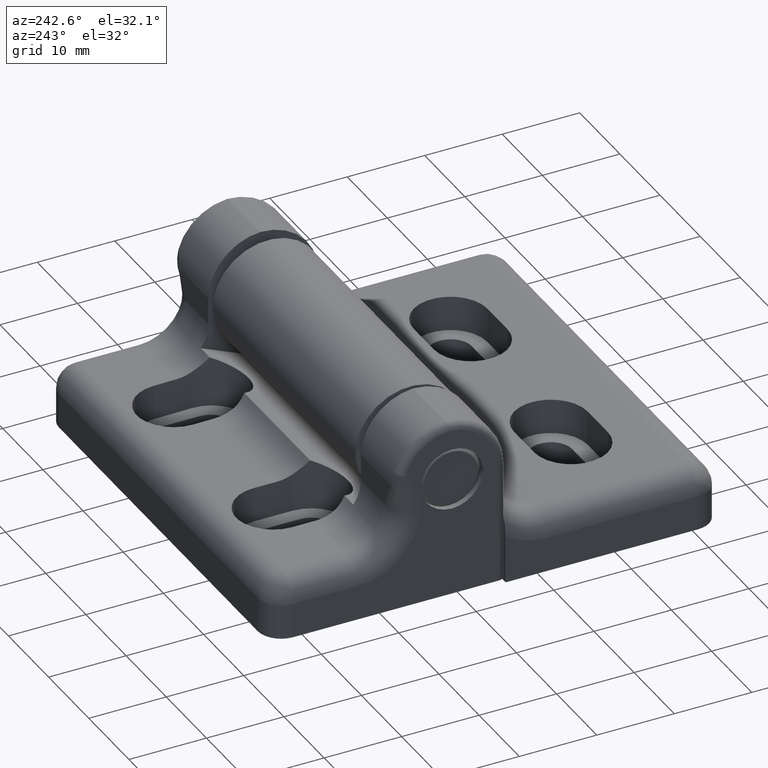
[diagram: clean part render]
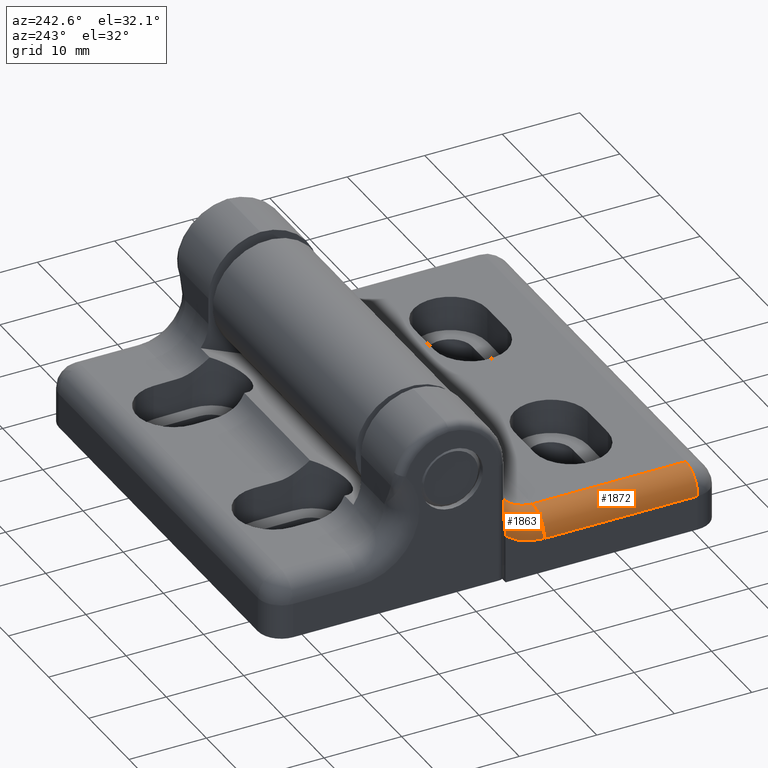
[diagram: same view with one multi-face feature highlighted, each face labeled with its STEP entity id]
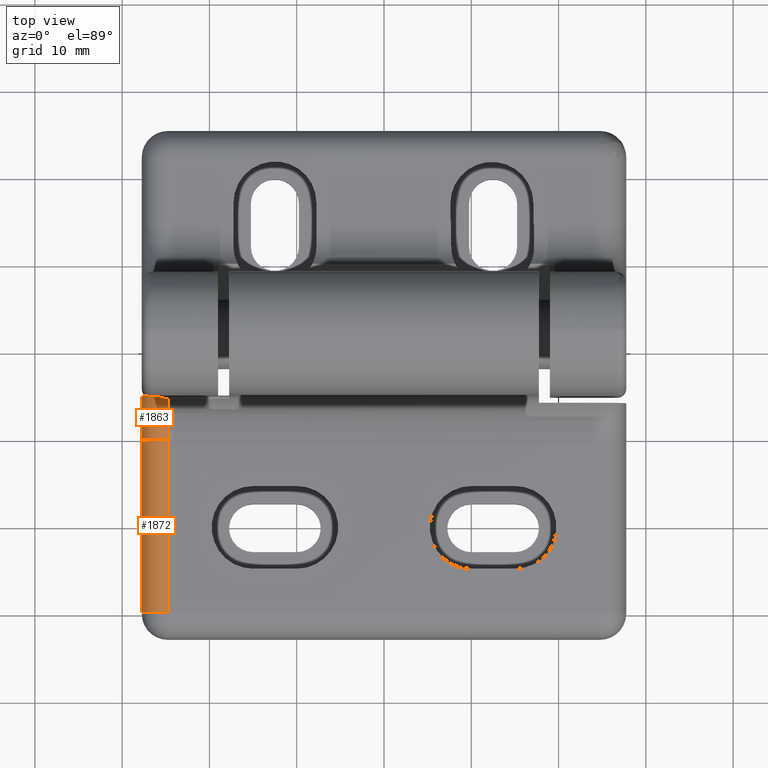
[diagram: same view with one multi-face feature highlighted, each face labeled with its STEP entity id]
A machine part, auxiliary view. The highlighted faces form ONE feature: a constant-radius fillet chain: 2 tangent blend faces with common blend radius 3 mm. The faces share edges in the B-rep.
A second angle (top view) of the same feature is appended — it is thin or edge-on in the first view.
Their STEP definitions:
[1] entity #1863 (Torus):
#43=TOROIDAL_SURFACE('',#2060,8.,3.);
#106=B_SPLINE_CURVE_WITH_KNOTS('',3,(#3235,#3236,#3237,#3238,#3239,#3240,
#3241,#3242),.UNSPECIFIED.,.F.,.F.,(4,2,2,4),(-0.664984729140869,-0.537973450419082,
-0.410962171697295,-0.23245759743016),.UNSPECIFIED.);
#108=B_SPLINE_CURVE_WITH_KNOTS('',3,(#3287,#3288,#3289,#3290,#3291,#3292,
#3293,#3294,#3295,#3296,#3297,#3298,#3299,#3300),.UNSPECIFIED.,.F.,.F.,
(4,2,2,2,2,2,4),(-0.000789974018252352,0.,0.10135919707466,0.153204696670885,
0.187321816884398,0.208404518133837,0.220310494605014),.UNSPECIFIED.);
#214=FACE_OUTER_BOUND('',#334,.T.);
#334=EDGE_LOOP('',(#1603,#1604,#1605,#1606,#1607));
#729=CIRCLE('',#2039,5.);
#740=CIRCLE('',#2061,8.);
#741=CIRCLE('',#2062,3.);
#888=VERTEX_POINT('',#3223);
#889=VERTEX_POINT('',#3225);
#892=VERTEX_POINT('',#3233);
#893=VERTEX_POINT('',#3234);
#899=VERTEX_POINT('',#3301);
#1125=EDGE_CURVE('',#888,#889,#729,.T.);
#1129=EDGE_CURVE('',#892,#893,#106,.T.);
#1148=EDGE_CURVE('',#888,#893,#108,.T.);
#1149=EDGE_CURVE('',#899,#892,#740,.T.);
#1150=EDGE_CURVE('',#899,#889,#741,.T.);
#1603=ORIENTED_EDGE('',*,*,#1125,.F.);
#1604=ORIENTED_EDGE('',*,*,#1148,.T.);
#1605=ORIENTED_EDGE('',*,*,#1129,.F.);
#1606=ORIENTED_EDGE('',*,*,#1149,.F.);
#1607=ORIENTED_EDGE('',*,*,#1150,.T.);
#1863=ADVANCED_FACE('',(#214),#43,.T.);
#2039=AXIS2_PLACEMENT_3D('',#3226,#2499,#2500);
#2060=AXIS2_PLACEMENT_3D('',#3286,#2551,#2552);
#2061=AXIS2_PLACEMENT_3D('',#3302,#2553,#2554);
#2062=AXIS2_PLACEMENT_3D('',#3303,#2555,#2556);
#2499=DIRECTION('center_axis',(-1.,0.,0.));
#2500=DIRECTION('ref_axis',(0.,0.,1.));
#2551=DIRECTION('center_axis',(-1.,3.72143018175369E-016,-1.86679687266086E-015));
#2552=DIRECTION('ref_axis',(-1.77635683940025E-015,0.,1.));
#2553=DIRECTION('center_axis',(1.,0.,0.));
#2554=DIRECTION('ref_axis',(0.,0.,1.));
#2555=DIRECTION('center_axis',(0.,1.,0.));
#2556=DIRECTION('ref_axis',(0.,0.,-1.));
#3223=CARTESIAN_POINT('',(-14.75,14.6653846153846,10.5769230769231));
#3225=CARTESIAN_POINT('',(-14.75,10.05,7.5));
#3226=CARTESIAN_POINT('Origin',(-14.75,10.05,12.5));
#3233=CARTESIAN_POINT('',(-17.75,15.05,6.2550020016016));
#3234=CARTESIAN_POINT('',(-16.2205906684562,15.05,10.5000000000009));
#3235=CARTESIAN_POINT('Ctrl Pts',(-17.75,15.05,6.2550020016016));
#3236=CARTESIAN_POINT('Ctrl Pts',(-17.75,15.05,6.67837293067422));
#3237=CARTESIAN_POINT('Ctrl Pts',(-17.6919319061333,15.05,7.13729863864553));
#3238=CARTESIAN_POINT('Ctrl Pts',(-17.4728163506988,15.05,8.03266327941443));
#3239=CARTESIAN_POINT('Ctrl Pts',(-17.3129019428146,15.05,8.46937911567057));
#3240=CARTESIAN_POINT('Ctrl Pts',(-16.8975096138527,15.05,9.39919609647389));
#3241=CARTESIAN_POINT('Ctrl Pts',(-16.5787313675425,15.05,9.95766183832187));
#3242=CARTESIAN_POINT('Ctrl Pts',(-16.2205906684562,15.05,10.5000000000009));
#3286=CARTESIAN_POINT('Origin',(-14.75,10.05,12.5));
#3287=CARTESIAN_POINT('Ctrl Pts',(-14.75,14.6653846153846,10.5769230769231));
#3288=CARTESIAN_POINT('Ctrl Pts',(-14.7525527001758,14.665633194227,10.5775196661447));
#3289=CARTESIAN_POINT('Ctrl Pts',(-14.7551054041364,14.6658846652775,10.5781150513184));
#3290=CARTESIAN_POINT('Ctrl Pts',(-15.0851870967299,14.6987744858383,10.6549441103174));
#3291=CARTESIAN_POINT('Ctrl Pts',(-15.3842356482358,14.7757382096446,10.7036664721428));
#3292=CARTESIAN_POINT('Ctrl Pts',(-15.7713802218279,14.9020167737209,10.6977987650857));
#3293=CARTESIAN_POINT('Ctrl Pts',(-15.8813993181719,14.9429871240585,10.6821001846839));
#3294=CARTESIAN_POINT('Ctrl Pts',(-16.0312762620115,14.9977242751766,10.637695561955));
#3295=CARTESIAN_POINT('Ctrl Pts',(-16.0807087794942,15.0154427854876,10.6157522011906));
#3296=CARTESIAN_POINT('Ctrl Pts',(-16.1457105345402,15.0358797131016,10.5757807619675));
#3297=CARTESIAN_POINT('Ctrl Pts',(-16.1700939133179,15.0427655982429,10.5575223696408));
#3298=CARTESIAN_POINT('Ctrl Pts',(-16.2027381610871,15.0488989157363,10.5242545401537));
#3299=CARTESIAN_POINT('Ctrl Pts',(-16.2125973240934,15.05,10.5121044486111));
#3300=CARTESIAN_POINT('Ctrl Pts',(-16.2205906684562,15.05,10.5000000000009));
#3301=CARTESIAN_POINT('',(-17.75,10.05,4.5));
#3302=CARTESIAN_POINT('Origin',(-17.75,10.05,12.5));
#3303=CARTESIAN_POINT('Origin',(-14.75,10.05,4.5));
[2] entity #1872 (Cylinder):
#223=FACE_OUTER_BOUND('',#346,.T.);
#346=EDGE_LOOP('',(#1658,#1659,#1660,#1661));
#494=LINE('',#3343,#639);
#495=LINE('',#3344,#640);
#639=VECTOR('',#2599,19.8);
#640=VECTOR('',#2600,19.8);
#739=CIRCLE('',#2059,3.);
#741=CIRCLE('',#2062,3.);
#889=VERTEX_POINT('',#3225);
#896=VERTEX_POINT('',#3275);
#898=VERTEX_POINT('',#3281);
#899=VERTEX_POINT('',#3301);
#1147=EDGE_CURVE('',#898,#896,#739,.T.);
#1150=EDGE_CURVE('',#899,#889,#741,.T.);
#1169=EDGE_CURVE('',#899,#898,#494,.T.);
#1170=EDGE_CURVE('',#889,#896,#495,.T.);
#1658=ORIENTED_EDGE('',*,*,#1169,.T.);
#1659=ORIENTED_EDGE('',*,*,#1147,.T.);
#1660=ORIENTED_EDGE('',*,*,#1170,.F.);
#1661=ORIENTED_EDGE('',*,*,#1150,.F.);
#1776=CYLINDRICAL_SURFACE('',#2077,3.);
#1872=ADVANCED_FACE('',(#223),#1776,.T.);
#2059=AXIS2_PLACEMENT_3D('',#3285,#2549,#2550);
#2062=AXIS2_PLACEMENT_3D('',#3303,#2555,#2556);
#2077=AXIS2_PLACEMENT_3D('',#3342,#2597,#2598);
#2549=DIRECTION('center_axis',(0.,1.,0.));
#2550=DIRECTION('ref_axis',(0.,0.,1.));
#2555=DIRECTION('center_axis',(0.,1.,0.));
#2556=DIRECTION('ref_axis',(0.,0.,-1.));
#2597=DIRECTION('center_axis',(0.,1.,0.));
#2598=DIRECTION('ref_axis',(-1.,0.,0.));
#2599=DIRECTION('',(0.,-1.,0.));
#2600=DIRECTION('',(0.,-1.,0.));
#3225=CARTESIAN_POINT('',(-14.75,10.05,7.5));
#3275=CARTESIAN_POINT('',(-14.75,-9.75000000000001,7.5));
#3281=CARTESIAN_POINT('',(-17.75,-9.75000000000001,4.5));
#3285=CARTESIAN_POINT('Origin',(-14.75,-9.75000000000001,4.5));
#3301=CARTESIAN_POINT('',(-17.75,10.05,4.5));
#3303=CARTESIAN_POINT('Origin',(-14.75,10.05,4.5));
#3342=CARTESIAN_POINT('Origin',(-14.75,3.16227766016838,4.5));
#3343=CARTESIAN_POINT('',(-17.75,3.16227766016838,4.5));
#3344=CARTESIAN_POINT('',(-14.75,3.16227766016838,7.5));